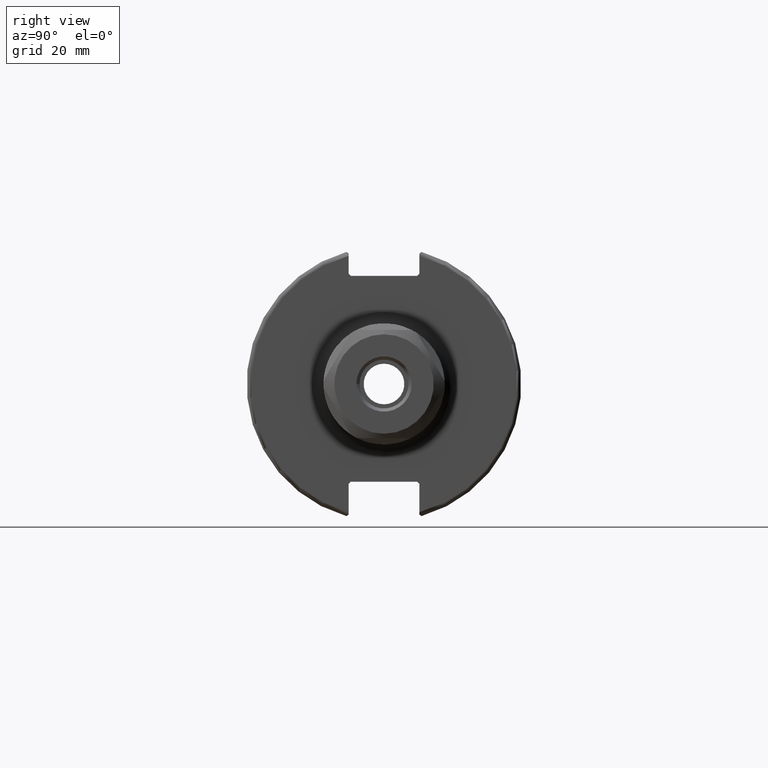
[diagram: clean part render]
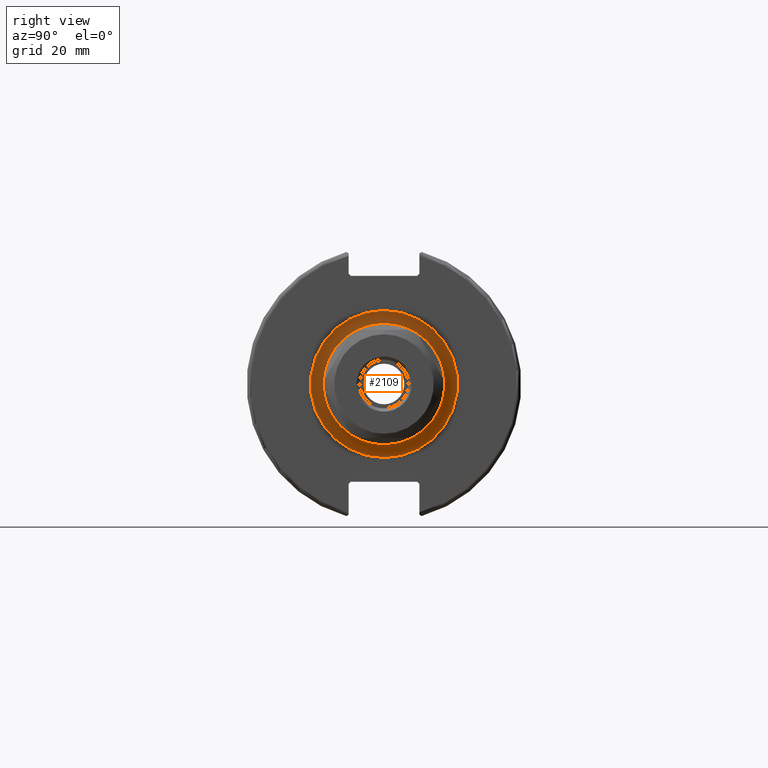
[diagram: same view with one face highlighted and labeled with its STEP entity id]
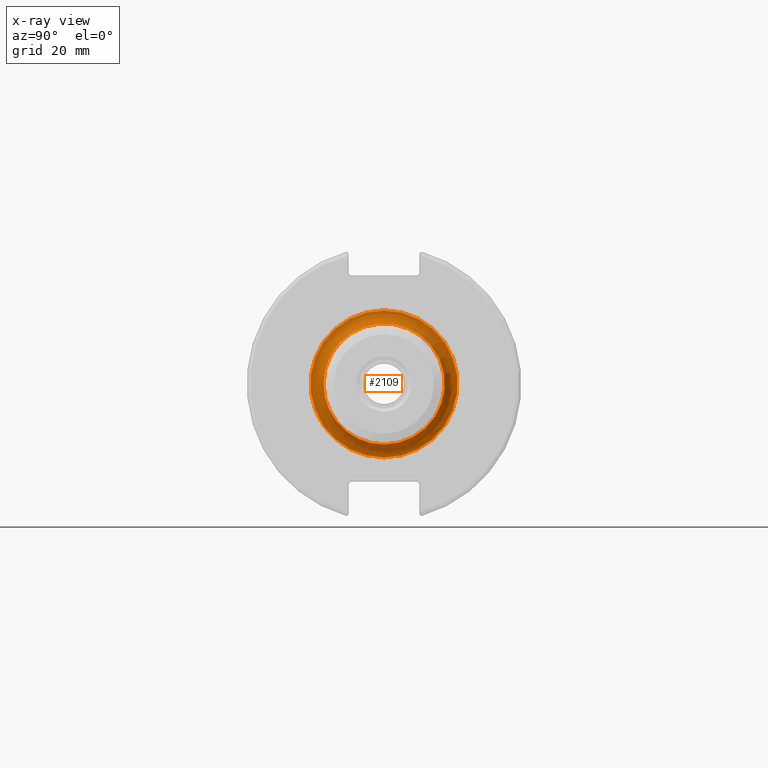
[diagram: x-ray of the same camera — body ghosted, the highlighted face saturated]
A machine part, right view. The second image highlights one B-rep face of the part: STEP entity #2109.
The next image is the same camera in x-ray: the body ghosted, the highlighted face saturated — about 2% of this face is hidden behind the body in this view.
In plain terms, the highlighted toroidal blend (fillet) surface has major radius 17 mm and minor (blend) radius 3 mm.
Its self-contained STEP definition (entity closure, byte-faithful):
#146=TOROIDAL_SURFACE('',#2328,17.,3.);
#279=FACE_OUTER_BOUND('',#404,.T.);
#404=EDGE_LOOP('',(#1488,#1489,#1490,#1491,#1492));
#820=CIRCLE('',#2326,14.);
#821=CIRCLE('',#2327,14.);
#822=CIRCLE('',#2329,3.);
#823=CIRCLE('',#2330,17.);
#927=VERTEX_POINT('',#3267);
#928=VERTEX_POINT('',#3269);
#929=VERTEX_POINT('',#3273);
#1146=EDGE_CURVE('',#928,#927,#820,.T.);
#1147=EDGE_CURVE('',#927,#928,#821,.T.);
#1148=EDGE_CURVE('',#928,#929,#822,.T.);
#1149=EDGE_CURVE('',#929,#929,#823,.T.);
#1488=ORIENTED_EDGE('',*,*,#1147,.T.);
#1489=ORIENTED_EDGE('',*,*,#1148,.T.);
#1490=ORIENTED_EDGE('',*,*,#1149,.T.);
#1491=ORIENTED_EDGE('',*,*,#1148,.F.);
#1492=ORIENTED_EDGE('',*,*,#1146,.T.);
#2109=ADVANCED_FACE('',(#279),#146,.F.);
#2326=AXIS2_PLACEMENT_3D('',#3270,#2625,#2626);
#2327=AXIS2_PLACEMENT_3D('',#3271,#2627,#2628);
#2328=AXIS2_PLACEMENT_3D('',#3272,#2629,#2630);
#2329=AXIS2_PLACEMENT_3D('',#3274,#2631,#2632);
#2330=AXIS2_PLACEMENT_3D('',#3275,#2633,#2634);
#2625=DIRECTION('center_axis',(-1.,0.,0.));
#2626=DIRECTION('ref_axis',(0.,-1.,-1.22464679914735E-16));
#2627=DIRECTION('center_axis',(-1.,0.,0.));
#2628=DIRECTION('ref_axis',(0.,-1.,-1.22464679914735E-16));
#2629=DIRECTION('center_axis',(-1.,0.,0.));
#2630=DIRECTION('ref_axis',(0.,0.,1.));
#2631=DIRECTION('center_axis',(0.,-1.,1.22464679914735E-16));
#2632=DIRECTION('ref_axis',(0.,-1.22464679914735E-16,-1.));
#2633=DIRECTION('center_axis',(1.,0.,0.));
#2634=DIRECTION('ref_axis',(0.,-1.,-1.22464679914735E-16));
#3267=CARTESIAN_POINT('',(22.05,-14.,-1.71450551880629E-15));
#3269=CARTESIAN_POINT('',(22.05,-1.71450551880629E-15,-14.));
#3270=CARTESIAN_POINT('Origin',(22.05,0.,0.));
#3271=CARTESIAN_POINT('Origin',(22.05,0.,0.));
#3272=CARTESIAN_POINT('Origin',(22.05,0.,0.));
#3273=CARTESIAN_POINT('',(19.05,-2.0818995585505E-15,-17.));
#3274=CARTESIAN_POINT('Origin',(22.05,-2.0818995585505E-15,-17.));
#3275=CARTESIAN_POINT('Origin',(19.05,0.,0.));